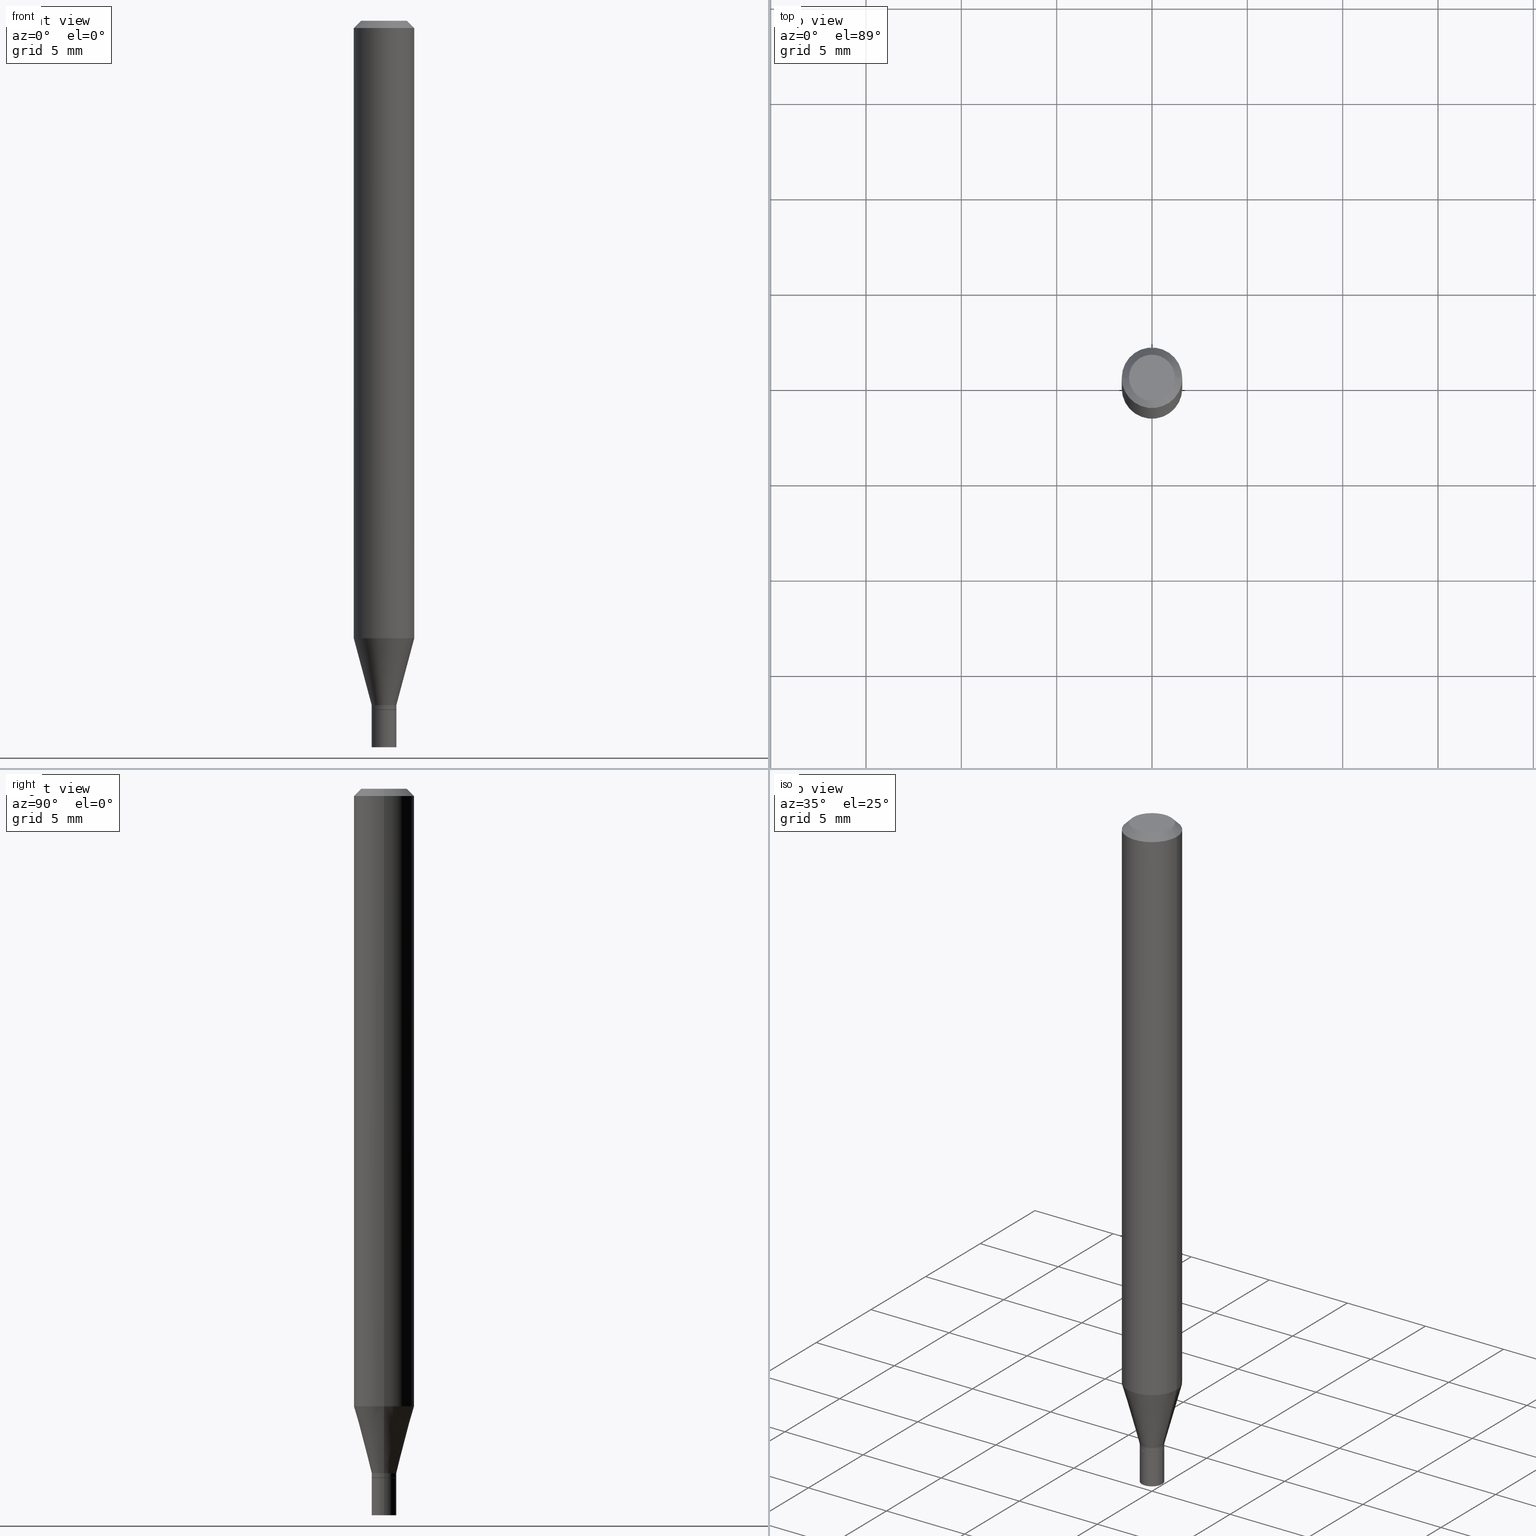
[diagram: canonical four-view strip — front | top / right | iso, engineering-drawing reading convention]
A machine part, canonical four-view strip (front | top / right | iso — engineering-drawing reading convention). The complete STEP part file that produces these views, byte-faithful:
ISO-10303-21;
HEADER;
FILE_DESCRIPTION (( 'STEP AP203' ),
    '1' );
FILE_NAME ('00347.STEP',
    '2024-03-19T21:01:22',
    ( '' ),
    ( '' ),
    'SwSTEP 2.0',
    'SolidWorks 2023',
    '' );
FILE_SCHEMA (( 'CONFIG_CONTROL_DESIGN' ));
ENDSEC;

DATA;
#1 = CARTESIAN_POINT ( 'NONE',  ( -0.02549999999999999836, -4.921611579100430777E-15, -1.423000000000000043 ) ) ;
#2 = ORIENTED_EDGE ( 'NONE', *, *, #185, .T. ) ;
#3 = CC_DESIGN_DATE_AND_TIME_ASSIGNMENT ( #393, #428, ( #161 ) ) ;
#4 = PLANE ( 'NONE',  #310 ) ;
#5 = EDGE_LOOP ( 'NONE', ( #138, #383, #222, #244 ) ) ;
#6 = CARTESIAN_POINT ( 'NONE',  ( 0.02549999999999992203, -5.111528680066364398E-15, -1.413000000000000256 ) ) ;
#7 = DIRECTION ( 'NONE',  ( -2.438088387897960049E-29, 3.491481338843145188E-15, 1.000000000000000000 ) ) ;
#8 = CONICAL_SURFACE ( 'NONE', #338, 0.02549999999999992203, 0.2617993877991499074 ) ;
#9 = EDGE_LOOP ( 'NONE', ( #291, #315 ) ) ;
#10 = DIRECTION ( 'NONE',  ( 0.2588190451025211836, 1.565188264969622559E-15, 0.9659258262890679791 ) ) ;
#11 = EDGE_CURVE ( 'NONE', #373, #19, #282, .T. ) ;
#12 = FACE_OUTER_BOUND ( 'NONE', #412, .T. ) ;
#13 = FACE_OUTER_BOUND ( 'NONE', #277, .T. ) ;
#14 = CARTESIAN_POINT ( 'NONE',  ( -0.02549999999999992203, 1.811883976188249934E-16, -1.254328448014996992E-30 ) ) ;
#15 = VERTEX_POINT ( 'NONE', #395 ) ;
#16 = ORIENTED_EDGE ( 'NONE', *, *, #460, .T. ) ;
#17 = VECTOR ( 'NONE', #213, 39.37007874015748854 ) ;
#18 = CARTESIAN_POINT ( 'NONE',  ( 3.479902111201449341E-29, -4.968377945173796372E-15, -1.423000000000000043 ) ) ;
#19 = VERTEX_POINT ( 'NONE', #144 ) ;
#20 = CARTESIAN_POINT ( 'NONE',  ( 0.000000000000000000, 0.000000000000000000, 0.000000000000000000 ) ) ;
#21 = CARTESIAN_POINT ( 'NONE',  ( 0.000000000000000000, 0.000000000000000000, 0.000000000000000000 ) ) ;
#22 = CARTESIAN_POINT ( 'NONE',  ( 0.06250000000000000000, -4.887774026381831286E-15, -1.274914120119951644 ) ) ;
#23 = ORIENTED_EDGE ( 'NONE', *, *, #460, .F. ) ;
#24 = APPROVAL_DATE_TIME ( #107, #459 ) ;
#25 = EDGE_CURVE ( 'NONE', #105, #269, #465, .T. ) ;
#26 = MANIFOLD_SOLID_BREP ( 'Body-Move/Copy2[2]', #29 ) ;
#27 = COORDINATED_UNIVERSAL_TIME_OFFSET ( 5, 0, .BEHIND. ) ;
#28 = EDGE_CURVE ( 'NONE', #211, #125, #66, .T. ) ;
#29 = CLOSED_SHELL ( 'NONE', ( #380, #333, #77, #229, #129, #42, #320, #103, #159, #208, #466, #122 ) ) ;
#30 = APPROVAL_STATUS ( 'not_yet_approved' ) ;
#31 = EDGE_LOOP ( 'NONE', ( #16, #143 ) ) ;
#32 = ORIENTED_EDGE ( 'NONE', *, *, #453, .F. ) ;
#33 = APPROVAL_ROLE ( '' ) ;
#34 = DIRECTION ( 'NONE',  ( -0.2588190451025211836, 5.211531920934547886E-15, 0.9659258262890679791 ) ) ;
#35 = CARTESIAN_POINT ( 'NONE',  ( 0.06250000000000000000, -4.811533449433679005E-16, -0.01499999999999999944 ) ) ;
#36 = VECTOR ( 'NONE', #312, 39.37007874015748143 ) ;
#37 = APPROVAL ( #63, 'UNSPECIFIED' ) ;
#38 = ORIENTED_EDGE ( 'NONE', *, *, #400, .F. ) ;
#39 = CARTESIAN_POINT ( 'NONE',  ( 3.316907271900976096E-16, 0.04749999999999999362, -4.396022119312973841E-16 ) ) ;
#40 = ORIENTED_EDGE ( 'NONE', *, *, #25, .T. ) ;
#41 = DIRECTION ( 'NONE',  ( -2.438088387897960049E-29, 3.491481338843145188E-15, 1.000000000000000000 ) ) ;
#42 = ADVANCED_FACE ( 'NONE', ( #12 ), #8, .T. ) ;
#43 = CARTESIAN_POINT ( 'NONE',  ( 0.02549999999999992203, -1.780655482809992805E-16, 1.243425077827959823E-30 ) ) ;
#44 = CIRCLE ( 'NONE', #288, 0.02549999999999992203 ) ;
#45 = FACE_OUTER_BOUND ( 'NONE', #271, .T. ) ;
#46 = VERTEX_POINT ( 'NONE', #6 ) ;
#47 = ORIENTED_EDGE ( 'NONE', *, *, #217, .F. ) ;
#48 = ORIENTED_EDGE ( 'NONE', *, *, #279, .T. ) ;
#49 = ORIENTED_EDGE ( 'NONE', *, *, #220, .F. ) ;
#50 = DIRECTION ( 'NONE',  ( -2.445468806185136597E-29, 3.491481338843145583E-15, 1.000000000000000000 ) ) ;
#51 = EDGE_CURVE ( 'NONE', #75, #386, #61, .T. ) ;
#52 = AXIS2_PLACEMENT_3D ( 'NONE', #339, #118, #81 ) ;
#53 = DIRECTION ( 'NONE',  ( 1.000000000000000000, -6.982962677686275388E-15, 0.000000000000000000 ) ) ;
#54 = CARTESIAN_POINT ( 'NONE',  ( 3.479902111201449341E-29, -4.968377945173796372E-15, -1.423000000000000043 ) ) ;
#55 = DIRECTION ( 'NONE',  ( -1.000000000000000000, 6.982962677686266711E-15, 0.000000000000000000 ) ) ;
#56 = DIRECTION ( 'NONE',  ( 1.000000000000000000, -6.982962677686255667E-15, 0.000000000000000000 ) ) ;
#57 = ORIENTED_EDGE ( 'NONE', *, *, #410, .T. ) ;
#58 = EDGE_CURVE ( 'NONE', #46, #105, #100, .T. ) ;
#59 = CARTESIAN_POINT ( 'NONE',  ( -0.06250000000000000000, 3.840629472727444916E-16, -0.01499999999999999944 ) ) ;
#60 = ORIENTED_EDGE ( 'NONE', *, *, #268, .T. ) ;
#61 = CIRCLE ( 'NONE', #52, 0.02549999999999992203 ) ;
#62 = AXIS2_PLACEMENT_3D ( 'NONE', #424, #248, #199 ) ;
#63 = APPROVAL_STATUS ( 'not_yet_approved' ) ;
#64 = EDGE_CURVE ( 'NONE', #125, #211, #175, .T. ) ;
#65 = PERSON_AND_ORGANIZATION_ROLE ( 'creator' ) ;
#66 = CIRCLE ( 'NONE', #376, 0.02549999999999999836 ) ;
#67 = APPROVAL_ROLE ( '' ) ;
#68 = PRODUCT_DEFINITION_FORMATION_WITH_SPECIFIED_SOURCE ( 'ANY', '', #308, .NOT_KNOWN. ) ;
#69 = CALENDAR_DATE ( 2024, 19, 3 ) ;
#70 = EDGE_CURVE ( 'NONE', #19, #373, #299, .T. ) ;
#71 = DIRECTION ( 'NONE',  ( 1.000000000000000000, -6.982962677686266711E-15, 0.000000000000000000 ) ) ;
#72 = ORIENTED_EDGE ( 'NONE', *, *, #243, .F. ) ;
#73 = AXIS2_PLACEMENT_3D ( 'NONE', #280, #96, #55 ) ;
#74 = PLANE ( 'NONE',  #362 ) ;
#75 = VERTEX_POINT ( 'NONE', #321 ) ;
#76 = DIRECTION ( 'NONE',  ( 1.000000000000000000, -6.982962677686266711E-15, 4.876176775795935793E-29 ) ) ;
#77 = ADVANCED_FACE ( 'NONE', ( #136 ), #120, .T. ) ;
#78 = DIRECTION ( 'NONE',  ( 1.000000000000000000, -6.982962677686266711E-15, 0.000000000000000000 ) ) ;
#79 = CARTESIAN_POINT ( 'NONE',  ( 1.780655482810345820E-16, 0.02549999999999503011, -1.423000000000000043 ) ) ;
#80 = ORIENTED_EDGE ( 'NONE', *, *, #28, .F. ) ;
#81 = DIRECTION ( 'NONE',  ( 1.000000000000000000, -6.982962677686258822E-15, 0.000000000000000000 ) ) ;
#82 = DIRECTION ( 'NONE',  ( -2.445468806185136877E-29, 3.491481338843145188E-15, 1.000000000000000000 ) ) ;
#83 = CONICAL_SURFACE ( 'NONE', #141, 0.02499999999999999792, 0.7853981633974739252 ) ;
#84 = FACE_OUTER_BOUND ( 'NONE', #108, .T. ) ;
#85 = EDGE_CURVE ( 'NONE', #19, #75, #245, .T. ) ;
#86 =( LENGTH_UNIT ( ) NAMED_UNIT ( * ) SI_UNIT ( $, .METRE. ) );
#87 = ORIENTED_EDGE ( 'NONE', *, *, #295, .T. ) ;
#88 = CARTESIAN_POINT ( 'NONE',  ( 1.338927666171699620E-44, -1.911633854693045944E-30, -5.475136966724958768E-16 ) ) ;
#89 = ADVANCED_FACE ( 'NONE', ( #155 ), #438, .F. ) ;
#90 = PERSON ( 'UNSPECIFIED', 'UNSPECIFIED', 'UNSPECIFIED', ('UNSPECIFIED'), ('UNSPECIFIED'), ('UNSPECIFIED') ) ;
#91 = LINE ( 'NONE', #357, #114 ) ;
#92 = VECTOR ( 'NONE', #370, 39.37007874015748854 ) ;
#93 = EDGE_LOOP ( 'NONE', ( #180, #23, #57, #60 ) ) ;
#94 = LOCAL_TIME ( 17, 1, 22.00000000000000000, #27 ) ;
#95 = AXIS2_PLACEMENT_3D ( 'NONE', #454, #216, #359 ) ;
#96 = DIRECTION ( 'NONE',  ( 2.445468806185136597E-29, -3.491481338843145583E-15, -1.000000000000000000 ) ) ;
#97 = FACE_OUTER_BOUND ( 'NONE', #5, .T. ) ;
#98 = CARTESIAN_POINT ( 'NONE',  ( 3.668203209277704895E-29, -5.237222008264718177E-15, -1.500000000000000222 ) ) ;
#99 = CARTESIAN_POINT ( 'NONE',  ( 0.02549999999999999836, -5.146443493454796047E-15, -1.423000000000000043 ) ) ;
#100 = CIRCLE ( 'NONE', #429, 0.02549999999999992203 ) ;
#101 = APPROVAL_PERSON_ORGANIZATION ( #142, #459, #67 ) ;
#102 = COORDINATED_UNIVERSAL_TIME_OFFSET ( 5, 0, .BEHIND. ) ;
#103 = ADVANCED_FACE ( 'NONE', ( #203 ), #182, .T. ) ;
#104 = APPROVAL_ROLE ( '' ) ;
#105 = VERTEX_POINT ( 'NONE', #126 ) ;
#106 = ORIENTED_EDGE ( 'NONE', *, *, #371, .T. ) ;
#107 = DATE_AND_TIME ( #174, #364 ) ;
#108 = EDGE_LOOP ( 'NONE', ( #38, #399, #313, #348 ) ) ;
#109 = AXIS2_PLACEMENT_3D ( 'NONE', #21, #119, #447 ) ;
#110 = CC_DESIGN_PERSON_AND_ORGANIZATION_ASSIGNMENT ( #177, #328, ( #68 ) ) ;
#111 = CARTESIAN_POINT ( 'NONE',  ( 3.668203209277705088E-31, -5.237222008264718399E-17, -0.01499999999999999944 ) ) ;
#112 = CARTESIAN_POINT ( 'NONE',  ( 0.06250000000000000000, -4.364351673553916694E-16, 3.047610484872459871E-30 ) ) ;
#113 = FACE_OUTER_BOUND ( 'NONE', #408, .T. ) ;
#114 = VECTOR ( 'NONE', #134, 39.37007874015748143 ) ;
#115 = LINE ( 'NONE', #35, #92 ) ;
#116 = CARTESIAN_POINT ( 'NONE',  ( 3.479902111201449341E-29, -4.968377945173796372E-15, -1.423000000000000043 ) ) ;
#117 = PLANE ( 'NONE',  #167 ) ;
#118 = DIRECTION ( 'NONE',  ( -2.445468806185136597E-29, 3.491481338843145583E-15, 1.000000000000000000 ) ) ;
#119 = DIRECTION ( 'NONE',  ( -2.445468806185136597E-29, 3.491481338843145583E-15, 1.000000000000000000 ) ) ;
#120 = CONICAL_SURFACE ( 'NONE', #73, 0.06250000000000000000, 0.7853981633974667087 ) ;
#121 = AXIS2_PLACEMENT_3D ( 'NONE', #274, #128, #163 ) ;
#122 = ADVANCED_FACE ( 'NONE', ( #84 ), #352, .T. ) ;
#123 = DIRECTION ( 'NONE',  ( -2.445468806185136877E-29, 3.491481338843145188E-15, 1.000000000000000000 ) ) ;
#124 = EDGE_LOOP ( 'NONE', ( #257, #2, #301, #80 ) ) ;
#125 = VERTEX_POINT ( 'NONE', #99 ) ;
#126 = CARTESIAN_POINT ( 'NONE',  ( -0.02549999999999992203, -4.379762191671458599E-15, -1.413000000000000256 ) ) ;
#127 = DIRECTION ( 'NONE',  ( -2.445468806185136597E-29, 3.491481338843145583E-15, 1.000000000000000000 ) ) ;
#128 = DIRECTION ( 'NONE',  ( -2.445468806185136597E-29, 3.491481338843145583E-15, 1.000000000000000000 ) ) ;
#129 = ADVANCED_FACE ( 'NONE', ( #283 ), #264, .T. ) ;
#130 = DIRECTION ( 'NONE',  ( -2.445468806185136597E-29, 3.491481338843145583E-15, 1.000000000000000000 ) ) ;
#131 = CC_DESIGN_PERSON_AND_ORGANIZATION_ASSIGNMENT ( #254, #292, ( #232 ) ) ;
#132 = CLOSED_SHELL ( 'NONE', ( #173, #262, #425, #89 ) ) ;
#133 = VECTOR ( 'NONE', #297, 39.37007874015748143 ) ;
#134 = DIRECTION ( 'NONE',  ( -0.7071067811865656694, 7.493145998870420424E-15, 0.7071067811865294761 ) ) ;
#135 = ORIENTED_EDGE ( 'NONE', *, *, #410, .F. ) ;
#136 = FACE_OUTER_BOUND ( 'NONE', #238, .T. ) ;
#137 = COORDINATED_UNIVERSAL_TIME_OFFSET ( 5, 0, .BEHIND. ) ;
#138 = ORIENTED_EDGE ( 'NONE', *, *, #361, .F. ) ;
#139 = COORDINATED_UNIVERSAL_TIME_OFFSET ( 5, 0, .BEHIND. ) ;
#140 = VECTOR ( 'NONE', #334, 39.37007874015748143 ) ;
#141 = AXIS2_PLACEMENT_3D ( 'NONE', #18, #246, #56 ) ;
#142 = PERSON_AND_ORGANIZATION ( #90, #252 ) ;
#143 = ORIENTED_EDGE ( 'NONE', *, *, #217, .T. ) ;
#144 = CARTESIAN_POINT ( 'NONE',  ( 0.02499999999999999792, -5.142952012115952251E-15, -1.423000000000000043 ) ) ;
#145 = APPROVAL ( #30, 'UNSPECIFIED' ) ;
#146 = AXIS2_PLACEMENT_3D ( 'NONE', #151, #266, #186 ) ;
#147 = ORIENTED_EDGE ( 'NONE', *, *, #64, .F. ) ;
#148 = LOCAL_TIME ( 17, 1, 22.00000000000000000, #137 ) ;
#149 = APPLICATION_CONTEXT ( 'configuration controlled 3d designs of mechanical parts and assemblies' ) ;
#150 = DIRECTION ( 'NONE',  ( -2.445468806185136597E-29, 3.491481338843145583E-15, 1.000000000000000000 ) ) ;
#151 = CARTESIAN_POINT ( 'NONE',  ( 3.668203209277704895E-29, -5.237222008264718177E-15, -1.500000000000000222 ) ) ;
#152 = EDGE_CURVE ( 'NONE', #384, #15, #115, .T. ) ;
#153 = CC_DESIGN_APPROVAL ( #145, ( #68 ) ) ;
#154 = CARTESIAN_POINT ( 'NONE',  ( -0.06250000000000000000, -4.007249649176377790E-15, -1.274914120119951644 ) ) ;
#155 = FACE_OUTER_BOUND ( 'NONE', #9, .T. ) ;
#156 = ORIENTED_EDGE ( 'NONE', *, *, #85, .F. ) ;
#157 = DIRECTION ( 'NONE',  ( -2.445468806185136597E-29, 3.491481338843145583E-15, 1.000000000000000000 ) ) ;
#158 = CARTESIAN_POINT ( 'NONE',  ( -0.02549999999999992203, -4.785443806885550343E-15, -1.422500000000000098 ) ) ;
#159 = ADVANCED_FACE ( 'NONE', ( #404 ), #74, .F. ) ;
#160 = DIRECTION ( 'NONE',  ( -2.445468806185136597E-29, 3.491481338843145583E-15, 1.000000000000000000 ) ) ;
#161 = SECURITY_CLASSIFICATION ( '', '', #258 ) ;
#162 = ORIENTED_EDGE ( 'NONE', *, *, #185, .F. ) ;
#163 = DIRECTION ( 'NONE',  ( 1.000000000000000000, -6.982962677686262766E-15, 0.000000000000000000 ) ) ;
#164 = DIRECTION ( 'NONE',  ( 1.000000000000000000, -6.982962677686258822E-15, 0.000000000000000000 ) ) ;
#165 = ORIENTED_EDGE ( 'NONE', *, *, #285, .F. ) ;
#166 = DIRECTION ( 'NONE',  ( -2.445468806185136597E-29, 3.491481338843145583E-15, 1.000000000000000000 ) ) ;
#167 = AXIS2_PLACEMENT_3D ( 'NONE', #378, #41, #411 ) ;
#168 = AXIS2_PLACEMENT_3D ( 'NONE', #88, #130, #281 ) ;
#169 = DIRECTION ( 'NONE',  ( 1.000000000000000000, -6.982962677686255667E-15, 0.000000000000000000 ) ) ;
#170 = DIRECTION ( 'NONE',  ( 2.445468806185136597E-29, -3.491481338843145583E-15, -1.000000000000000000 ) ) ;
#171 = APPROVAL_DATE_TIME ( #365, #37 ) ;
#172 = APPLICATION_PROTOCOL_DEFINITION ( 'international standard', 'config_control_design', 1994, #356 ) ;
#173 = ADVANCED_FACE ( 'NONE', ( #409 ), #303, .T. ) ;
#174 = CALENDAR_DATE ( 2024, 19, 3 ) ;
#175 = CIRCLE ( 'NONE', #298, 0.02549999999999999836 ) ;
#176 = CIRCLE ( 'NONE', #456, 0.06250000000000000000 ) ;
#177 = PERSON_AND_ORGANIZATION ( #90, #252 ) ;
#178 = VERTEX_POINT ( 'NONE', #337 ) ;
#179 = APPROVAL_DATE_TIME ( #287, #145 ) ;
#180 = ORIENTED_EDGE ( 'NONE', *, *, #152, .F. ) ;
#181 = CARTESIAN_POINT ( 'NONE',  ( 3.479902111201449341E-29, -4.968377945173796372E-15, -1.423000000000000043 ) ) ;
#182 = CONICAL_SURFACE ( 'NONE', #206, 0.06250000000000000000, 0.7853981633974667087 ) ;
#183 = AXIS2_PLACEMENT_3D ( 'NONE', #193, #267, #225 ) ;
#184 = LINE ( 'NONE', #112, #133 ) ;
#185 = EDGE_CURVE ( 'NONE', #441, #178, #319, .T. ) ;
#186 = DIRECTION ( 'NONE',  ( 1.000000000000000000, -6.982962677686275388E-15, 0.000000000000000000 ) ) ;
#187 = CC_DESIGN_PERSON_AND_ORGANIZATION_ASSIGNMENT ( #401, #452, ( #161 ) ) ;
#188 = DIRECTION ( 'NONE',  ( -2.445468806185136597E-29, 3.491481338843145583E-15, 1.000000000000000000 ) ) ;
#189 = ORIENTED_EDGE ( 'NONE', *, *, #400, .T. ) ;
#190 = LINE ( 'NONE', #43, #140 ) ;
#191 = AXIS2_PLACEMENT_3D ( 'NONE', #440, #231, #374 ) ;
#192 = CIRCLE ( 'NONE', #340, 0.06250000000000000000 ) ;
#193 = CARTESIAN_POINT ( 'NONE',  ( 3.455447423139598357E-29, -4.933463131785365512E-15, -1.413000000000000256 ) ) ;
#194 = DIRECTION ( 'NONE',  ( 2.438088387897960049E-29, -3.491481338843145188E-15, -1.000000000000000000 ) ) ;
#195 = ORIENTED_EDGE ( 'NONE', *, *, #70, .T. ) ;
#196 = ADVANCED_BREP_SHAPE_REPRESENTATION ( '00347', ( #204, #26, #95 ), #350 ) ;
#197 = CARTESIAN_POINT ( 'NONE',  ( 3.455447423139598357E-29, -4.933463131785365512E-15, -1.413000000000000256 ) ) ;
#198 = CARTESIAN_POINT ( 'NONE',  ( -0.06250000000000000000, 4.440892098500626162E-16, -3.074334431409316114E-30 ) ) ;
#199 = DIRECTION ( 'NONE',  ( 1.000000000000000000, -6.982962677686267499E-15, 4.876176775795935793E-29 ) ) ;
#200 = ORIENTED_EDGE ( 'NONE', *, *, #152, .T. ) ;
#201 = ORIENTED_EDGE ( 'NONE', *, *, #442, .F. ) ;
#202 = DESIGN_CONTEXT ( 'detailed design', #356, 'design' ) ;
#203 = FACE_OUTER_BOUND ( 'NONE', #93, .T. ) ;
#204 = MANIFOLD_SOLID_BREP ( 'Body-Move/Copy2[1]', #132 ) ;
#205 = LINE ( 'NONE', #351, #36 ) ;
#206 = AXIS2_PLACEMENT_3D ( 'NONE', #423, #170, #417 ) ;
#207 = CC_DESIGN_APPROVAL ( #459, ( #232 ) ) ;
#208 = ADVANCED_FACE ( 'NONE', ( #13 ), #117, .F. ) ;
#209 = CYLINDRICAL_SURFACE ( 'NONE', #62, 0.02549999999999992203 ) ;
#210 = CARTESIAN_POINT ( 'NONE',  ( -0.02549999999999999836, -4.921611579100430777E-15, -1.500000000000000222 ) ) ;
#211 = VERTEX_POINT ( 'NONE', #1 ) ;
#212 = CARTESIAN_POINT ( 'NONE',  ( 3.479902111201449341E-29, -4.968377945173796372E-15, -1.423000000000000043 ) ) ;
#213 = DIRECTION ( 'NONE',  ( -0.7071067811865604513, 2.468850131082393139E-15, -0.7071067811865343611 ) ) ;
#214 = VECTOR ( 'NONE', #304, 39.37007874015748143 ) ;
#215 = AXIS2_PLACEMENT_3D ( 'NONE', #111, #157, #71 ) ;
#216 = DIRECTION ( 'NONE',  ( 0.000000000000000000, 0.000000000000000000, 1.000000000000000000 ) ) ;
#217 = EDGE_CURVE ( 'NONE', #384, #431, #445, .T. ) ;
#218 =( NAMED_UNIT ( * ) SI_UNIT ( $, .STERADIAN. ) SOLID_ANGLE_UNIT ( ) );
#219 = ORIENTED_EDGE ( 'NONE', *, *, #243, .T. ) ;
#220 = EDGE_CURVE ( 'NONE', #178, #125, #414, .T. ) ;
#221 =( NAMED_UNIT ( * ) PLANE_ANGLE_UNIT ( ) SI_UNIT ( $, .RADIAN. ) );
#222 = ORIENTED_EDGE ( 'NONE', *, *, #85, .T. ) ;
#223 = EDGE_LOOP ( 'NONE', ( #255, #162 ) ) ;
#224 = CALENDAR_DATE ( 2024, 19, 3 ) ;
#225 = DIRECTION ( 'NONE',  ( 1.000000000000000000, -6.982962677686258822E-15, 0.000000000000000000 ) ) ;
#226 = AXIS2_PLACEMENT_3D ( 'NONE', #403, #296, #332 ) ;
#227 = VECTOR ( 'NONE', #10, 39.37007874015748854 ) ;
#228 = DIRECTION ( 'NONE',  ( -1.000000000000000000, 6.982962677686265922E-15, -4.876176775795935793E-29 ) ) ;
#229 = ADVANCED_FACE ( 'NONE', ( #45 ), #270, .T. ) ;
#230 = DIRECTION ( 'NONE',  ( 2.438088387897960049E-29, -3.491481338843145188E-15, -1.000000000000000000 ) ) ;
#231 = DIRECTION ( 'NONE',  ( -2.445468806185136597E-29, 3.491481338843145583E-15, 1.000000000000000000 ) ) ;
#232 = PRODUCT_DEFINITION ( 'UNKNOWN', '', #68, #202 ) ;
#233 = APPROVAL_PERSON_ORGANIZATION ( #457, #37, #104 ) ;
#234 = LINE ( 'NONE', #198, #349 ) ;
#235 = CARTESIAN_POINT ( 'NONE',  ( 3.479902111201449341E-29, -4.968377945173796372E-15, -1.423000000000000043 ) ) ;
#236 =( CONVERSION_BASED_UNIT ( 'INCH', #382 ) LENGTH_UNIT ( ) NAMED_UNIT ( #375 ) );
#237 = ORIENTED_EDGE ( 'NONE', *, *, #51, .T. ) ;
#238 = EDGE_LOOP ( 'NONE', ( #47, #200, #87, #135 ) ) ;
#239 = CARTESIAN_POINT ( 'NONE',  ( -0.06250000000000000000, -1.807766329704480929E-15, -0.01499999999999999944 ) ) ;
#240 = ORIENTED_EDGE ( 'NONE', *, *, #442, .T. ) ;
#241 = CARTESIAN_POINT ( 'NONE',  ( -0.02499999999999999792, -4.788093034059660756E-15, -1.423000000000000043 ) ) ;
#242 = ORIENTED_EDGE ( 'NONE', *, *, #51, .F. ) ;
#243 = EDGE_CURVE ( 'NONE', #269, #439, #234, .T. ) ;
#244 = ORIENTED_EDGE ( 'NONE', *, *, #420, .F. ) ;
#245 = LINE ( 'NONE', #387, #214 ) ;
#246 = DIRECTION ( 'NONE',  ( -2.445468806185136597E-29, 3.491481338843145583E-15, 1.000000000000000000 ) ) ;
#247 = ORIENTED_EDGE ( 'NONE', *, *, #268, .F. ) ;
#248 = DIRECTION ( 'NONE',  ( -2.445468806185136597E-29, 3.491481338843145583E-15, 1.000000000000000000 ) ) ;
#249 = ORIENTED_EDGE ( 'NONE', *, *, #250, .F. ) ;
#250 = EDGE_CURVE ( 'NONE', #75, #46, #190, .T. ) ;
#251 = VECTOR ( 'NONE', #345, 39.37007874015748143 ) ;
#252 = ORGANIZATION ( 'UNSPECIFIED', 'UNSPECIFIED', '' ) ;
#253 = PERSON_AND_ORGANIZATION ( #90, #252 ) ;
#254 = PERSON_AND_ORGANIZATION ( #90, #252 ) ;
#255 = ORIENTED_EDGE ( 'NONE', *, *, #371, .F. ) ;
#256 = PERSON_AND_ORGANIZATION ( #90, #252 ) ;
#257 = ORIENTED_EDGE ( 'NONE', *, *, #434, .F. ) ;
#258 = SECURITY_CLASSIFICATION_LEVEL ( 'unclassified' ) ;
#259 = ORIENTED_EDGE ( 'NONE', *, *, #25, .F. ) ;
#260 = ORIENTED_EDGE ( 'NONE', *, *, #453, .T. ) ;
#261 = CARTESIAN_POINT ( 'NONE',  ( 0.02549999999999999836, -1.780655482809997982E-16, 1.243425077827963501E-30 ) ) ;
#262 = ADVANCED_FACE ( 'NONE', ( #341 ), #4, .F. ) ;
#263 = DIRECTION ( 'NONE',  ( 1.000000000000000000, -6.982962677686258822E-15, 0.000000000000000000 ) ) ;
#264 = CONICAL_SURFACE ( 'NONE', #325, 0.02549999999999992203, 0.2617993877991499074 ) ;
#265 = AXIS2_PLACEMENT_3D ( 'NONE', #98, #50, #284 ) ;
#266 = DIRECTION ( 'NONE',  ( -2.445468806185136597E-29, 3.491481338843145583E-15, 1.000000000000000000 ) ) ;
#267 = DIRECTION ( 'NONE',  ( -2.445468806185136597E-29, 3.491481338843145583E-15, 1.000000000000000000 ) ) ;
#268 = EDGE_CURVE ( 'NONE', #439, #15, #192, .T. ) ;
#269 = VERTEX_POINT ( 'NONE', #154 ) ;
#270 = CYLINDRICAL_SURFACE ( 'NONE', #368, 0.06250000000000000000 ) ;
#271 = EDGE_LOOP ( 'NONE', ( #240, #219, #402, #381 ) ) ;
#272 = DIRECTION ( 'NONE',  ( 1.000000000000000000, -6.982962677686262766E-15, 0.000000000000000000 ) ) ;
#273 = DIRECTION ( 'NONE',  ( -2.445468806185136597E-29, 3.491481338843145583E-15, 1.000000000000000000 ) ) ;
#274 = CARTESIAN_POINT ( 'NONE',  ( 3.117762711318311949E-29, -4.451338859026439617E-15, -1.274914120119951644 ) ) ;
#275 = EDGE_CURVE ( 'NONE', #105, #46, #377, .T. ) ;
#276 = ORIENTED_EDGE ( 'NONE', *, *, #58, .T. ) ;
#277 = EDGE_LOOP ( 'NONE', ( #415, #293 ) ) ;
#278 = CARTESIAN_POINT ( 'NONE',  ( 0.000000000000000000, 0.000000000000000000, 0.000000000000000000 ) ) ;
#279 = EDGE_CURVE ( 'NONE', #444, #15, #184, .T. ) ;
#280 = CARTESIAN_POINT ( 'NONE',  ( 3.668203209277705088E-31, -5.237222008264718399E-17, -0.01499999999999999944 ) ) ;
#281 = DIRECTION ( 'NONE',  ( 1.000000000000000000, -6.982962677686267499E-15, 4.852736867747366768E-29 ) ) ;
#282 = CIRCLE ( 'NONE', #405, 0.02499999999999999792 ) ;
#283 = FACE_OUTER_BOUND ( 'NONE', #461, .T. ) ;
#284 = DIRECTION ( 'NONE',  ( 1.000000000000000000, -6.982962677686275388E-15, 0.000000000000000000 ) ) ;
#285 = EDGE_CURVE ( 'NONE', #46, #444, #435, .T. ) ;
#286 = PERSON_AND_ORGANIZATION ( #90, #252 ) ;
#287 = DATE_AND_TIME ( #224, #369 ) ;
#288 = AXIS2_PLACEMENT_3D ( 'NONE', #388, #160, #164 ) ;
#289 = APPLICATION_PROTOCOL_DEFINITION ( 'international standard', 'config_control_design', 1994, #149 ) ;
#290 = PERSON_AND_ORGANIZATION_ROLE ( 'design_owner' ) ;
#291 = ORIENTED_EDGE ( 'NONE', *, *, #64, .T. ) ;
#292 = PERSON_AND_ORGANIZATION_ROLE ( 'creator' ) ;
#293 = ORIENTED_EDGE ( 'NONE', *, *, #11, .F. ) ;
#294 = CARTESIAN_POINT ( 'NONE',  ( 3.668203209277705088E-31, -5.237222008264718399E-17, -0.01499999999999999944 ) ) ;
#295 = EDGE_CURVE ( 'NONE', #15, #439, #326, .T. ) ;
#296 = DIRECTION ( 'NONE',  ( -2.445468806185136597E-29, 3.491481338843145583E-15, 1.000000000000000000 ) ) ;
#297 = DIRECTION ( 'NONE',  ( -2.445468806185136877E-29, 3.491481338843145188E-15, 1.000000000000000000 ) ) ;
#298 = AXIS2_PLACEMENT_3D ( 'NONE', #235, #273, #53 ) ;
#299 = CIRCLE ( 'NONE', #391, 0.02499999999999999792 ) ;
#300 = CARTESIAN_POINT ( 'NONE',  ( 3.576687321579069994E-29, -5.368277968210015545E-15, -1.500000000000000222 ) ) ;
#301 = ORIENTED_EDGE ( 'NONE', *, *, #220, .T. ) ;
#302 = PRODUCT_DEFINITION_SHAPE ( 'NONE', 'NONE',  #232 ) ;
#303 = CYLINDRICAL_SURFACE ( 'NONE', #191, 0.02549999999999999836 ) ;
#304 = DIRECTION ( 'NONE',  ( 0.7071067811865656694, -2.468850131082446387E-15, 0.7071067811865294761 ) ) ;
#305 = ORIENTED_EDGE ( 'NONE', *, *, #275, .T. ) ;
#306 = DIRECTION ( 'NONE',  ( 1.000000000000000000, -6.982962677686266711E-15, 4.876176775795935793E-29 ) ) ;
#307 = EDGE_LOOP ( 'NONE', ( #237, #189, #360, #249 ) ) ;
#308 = PRODUCT ( '00347', '00347', '', ( #462 ) ) ;
#309 = EDGE_LOOP ( 'NONE', ( #195, #390, #242, #156 ) ) ;
#310 = AXIS2_PLACEMENT_3D ( 'NONE', #300, #7, #433 ) ;
#311 = AXIS2_PLACEMENT_3D ( 'NONE', #278, #419, #306 ) ;
#312 = DIRECTION ( 'NONE',  ( -2.445468806185136877E-29, 3.491481338843145188E-15, 1.000000000000000000 ) ) ;
#313 = ORIENTED_EDGE ( 'NONE', *, *, #250, .T. ) ;
#314 = LINE ( 'NONE', #14, #331 ) ;
#315 = ORIENTED_EDGE ( 'NONE', *, *, #28, .T. ) ;
#316 = DIRECTION ( 'NONE',  ( -2.445468806185136597E-29, 3.491481338843145583E-15, 1.000000000000000000 ) ) ;
#317 = ORIENTED_EDGE ( 'NONE', *, *, #434, .T. ) ;
#318 = FACE_OUTER_BOUND ( 'NONE', #309, .T. ) ;
#319 = CIRCLE ( 'NONE', #146, 0.02549999999999999836 ) ;
#320 = ADVANCED_FACE ( 'NONE', ( #113 ), #372, .T. ) ;
#321 = CARTESIAN_POINT ( 'NONE',  ( 0.02549999999999992203, -5.144697752785373754E-15, -1.422500000000000098 ) ) ;
#322 = SHAPE_DEFINITION_REPRESENTATION ( #302, #196 ) ;
#323 = DATE_AND_TIME ( #324, #94 ) ;
#324 = CALENDAR_DATE ( 2024, 19, 3 ) ;
#325 = AXIS2_PLACEMENT_3D ( 'NONE', #422, #166, #263 ) ;
#326 = CIRCLE ( 'NONE', #215, 0.06250000000000000000 ) ;
#327 = CC_DESIGN_DATE_AND_TIME_ASSIGNMENT ( #323, #394, ( #232 ) ) ;
#328 = PERSON_AND_ORGANIZATION_ROLE ( 'design_supplier' ) ;
#329 = COORDINATED_UNIVERSAL_TIME_OFFSET ( 5, 0, .BEHIND. ) ;
#330 = AXIS2_PLACEMENT_3D ( 'NONE', #20, #127, #448 ) ;
#331 = VECTOR ( 'NONE', #123, 39.37007874015748143 ) ;
#332 = DIRECTION ( 'NONE',  ( 1.000000000000000000, -6.982962677686267499E-15, 4.852736867747366768E-29 ) ) ;
#333 = ADVANCED_FACE ( 'NONE', ( #318 ), #430, .T. ) ;
#334 = DIRECTION ( 'NONE',  ( -2.445468806185136877E-29, 3.491481338843145188E-15, 1.000000000000000000 ) ) ;
#335 = DIRECTION ( 'NONE',  ( 1.000000000000000000, -6.982962677686258822E-15, 0.000000000000000000 ) ) ;
#336 = CC_DESIGN_PERSON_AND_ORGANIZATION_ASSIGNMENT ( #286, #290, ( #308 ) ) ;
#337 = CARTESIAN_POINT ( 'NONE',  ( 0.02549999999999999836, -5.415287556545718640E-15, -1.500000000000000222 ) ) ;
#338 = AXIS2_PLACEMENT_3D ( 'NONE', #413, #188, #335 ) ;
#339 = CARTESIAN_POINT ( 'NONE',  ( 3.478679376798357100E-29, -4.966632204504374868E-15, -1.422500000000000098 ) ) ;
#340 = AXIS2_PLACEMENT_3D ( 'NONE', #294, #432, #78 ) ;
#341 = FACE_OUTER_BOUND ( 'NONE', #223, .T. ) ;
#342 = DIRECTION ( 'NONE',  ( -1.000000000000000000, 6.982962677686265922E-15, -4.876176775795935793E-29 ) ) ;
#343 = DIRECTION ( 'NONE',  ( -2.445468806185136597E-29, 3.491481338843145583E-15, 1.000000000000000000 ) ) ;
#344 = DIRECTION ( 'NONE',  ( -2.445468806185136597E-29, 3.491481338843145583E-15, 1.000000000000000000 ) ) ;
#345 = DIRECTION ( 'NONE',  ( -2.445468806185136877E-29, 3.491481338843145188E-15, 1.000000000000000000 ) ) ;
#346 = DIRECTION ( 'NONE',  ( -2.445468806185136597E-29, 3.491481338843145583E-15, 1.000000000000000000 ) ) ;
#347 = PRODUCT_RELATED_PRODUCT_CATEGORY ( 'detail', '', ( #308 ) ) ;
#348 = ORIENTED_EDGE ( 'NONE', *, *, #275, .F. ) ;
#349 = VECTOR ( 'NONE', #82, 39.37007874015748143 ) ;
#350 =( GEOMETRIC_REPRESENTATION_CONTEXT ( 3 ) GLOBAL_UNCERTAINTY_ASSIGNED_CONTEXT ( ( #451 ) ) GLOBAL_UNIT_ASSIGNED_CONTEXT ( ( #236, #221, #218 ) ) REPRESENTATION_CONTEXT ( 'NONE', 'WORKASPACE' ) );
#351 = CARTESIAN_POINT ( 'NONE',  ( -0.02549999999999999836, 1.811883976188255358E-16, -1.254328448015001021E-30 ) ) ;
#352 = CYLINDRICAL_SURFACE ( 'NONE', #330, 0.02549999999999992203 ) ;
#353 = CYLINDRICAL_SURFACE ( 'NONE', #109, 0.02549999999999999836 ) ;
#354 = CC_DESIGN_PERSON_AND_ORGANIZATION_ASSIGNMENT ( #253, #65, ( #68 ) ) ;
#355 = DIRECTION ( 'NONE',  ( -2.445468806185136597E-29, 3.491481338843145583E-15, 1.000000000000000000 ) ) ;
#356 = APPLICATION_CONTEXT ( 'configuration controlled 3d designs of mechanical parts and assemblies' ) ;
#357 = CARTESIAN_POINT ( 'NONE',  ( -0.02499999999999999792, -4.790742261233771168E-15, -1.423000000000000043 ) ) ;
#358 = APPROVAL_STATUS ( 'not_yet_approved' ) ;
#359 = DIRECTION ( 'NONE',  ( 1.000000000000000000, 0.000000000000000000, 0.000000000000000000 ) ) ;
#360 = ORIENTED_EDGE ( 'NONE', *, *, #58, .F. ) ;
#361 = EDGE_CURVE ( 'NONE', #373, #386, #91, .T. ) ;
#362 = AXIS2_PLACEMENT_3D ( 'NONE', #39, #230, #228 ) ;
#363 = APPROVAL_PERSON_ORGANIZATION ( #256, #145, #33 ) ;
#364 = LOCAL_TIME ( 17, 1, 22.00000000000000000, #102 ) ;
#365 = DATE_AND_TIME ( #396, #148 ) ;
#366 = CARTESIAN_POINT ( 'NONE',  ( -0.02549999999999992203, -4.752274734166540987E-15, -1.413000000000000256 ) ) ;
#367 = CARTESIAN_POINT ( 'NONE',  ( 0.000000000000000000, 0.000000000000000000, 0.000000000000000000 ) ) ;
#368 = AXIS2_PLACEMENT_3D ( 'NONE', #367, #150, #76 ) ;
#369 = LOCAL_TIME ( 17, 1, 22.00000000000000000, #139 ) ;
#370 = DIRECTION ( 'NONE',  ( 0.7071067811865604513, -7.319954787623298644E-15, -0.7071067811865343611 ) ) ;
#371 = EDGE_CURVE ( 'NONE', #178, #441, #398, .T. ) ;
#372 = CYLINDRICAL_SURFACE ( 'NONE', #311, 0.06250000000000000000 ) ;
#373 = VERTEX_POINT ( 'NONE', #241 ) ;
#374 = DIRECTION ( 'NONE',  ( 1.000000000000000000, -6.982962677686266711E-15, 4.876176775795935793E-29 ) ) ;
#375 = DIMENSIONAL_EXPONENTS ( 1.000000000000000000, 0.000000000000000000, 0.000000000000000000, 0.000000000000000000, 0.000000000000000000, 0.000000000000000000, 0.000000000000000000 ) ;
#376 = AXIS2_PLACEMENT_3D ( 'NONE', #181, #463, #406 ) ;
#377 = CIRCLE ( 'NONE', #183, 0.02549999999999992203 ) ;
#378 = CARTESIAN_POINT ( 'NONE',  ( 3.479902111201449341E-29, -4.968377945173796372E-15, -1.423000000000000043 ) ) ;
#379 = CARTESIAN_POINT ( 'NONE',  ( 0.04749999999999999362, -4.035134999187587991E-16, -5.475136966724933130E-16 ) ) ;
#380 = ADVANCED_FACE ( 'NONE', ( #385 ), #209, .T. ) ;
#381 = ORIENTED_EDGE ( 'NONE', *, *, #279, .F. ) ;
#382 = LENGTH_MEASURE_WITH_UNIT ( LENGTH_MEASURE( 0.02539999999999999897 ), #86 );
#383 = ORIENTED_EDGE ( 'NONE', *, *, #11, .T. ) ;
#384 = VERTEX_POINT ( 'NONE', #379 ) ;
#385 = FACE_OUTER_BOUND ( 'NONE', #307, .T. ) ;
#386 = VERTEX_POINT ( 'NONE', #158 ) ;
#387 = CARTESIAN_POINT ( 'NONE',  ( 0.02499999999999999792, -5.142952012115952251E-15, -1.423000000000000043 ) ) ;
#388 = CARTESIAN_POINT ( 'NONE',  ( 3.478679376798357100E-29, -4.966632204504374868E-15, -1.422500000000000098 ) ) ;
#389 = LINE ( 'NONE', #59, #17 ) ;
#390 = ORIENTED_EDGE ( 'NONE', *, *, #361, .T. ) ;
#391 = AXIS2_PLACEMENT_3D ( 'NONE', #212, #355, #169 ) ;
#392 = CIRCLE ( 'NONE', #168, 0.04749999999999999362 ) ;
#393 = DATE_AND_TIME ( #69, #450 ) ;
#394 = DATE_TIME_ROLE ( 'creation_date' ) ;
#395 = CARTESIAN_POINT ( 'NONE',  ( 0.06250000000000000000, -4.888073874380388472E-16, -0.01499999999999999944 ) ) ;
#396 = CALENDAR_DATE ( 2024, 19, 3 ) ;
#397 = AXIS2_PLACEMENT_3D ( 'NONE', #79, #194, #342 ) ;
#398 = CIRCLE ( 'NONE', #265, 0.02549999999999999836 ) ;
#399 = ORIENTED_EDGE ( 'NONE', *, *, #420, .T. ) ;
#400 = EDGE_CURVE ( 'NONE', #386, #105, #314, .T. ) ;
#401 = PERSON_AND_ORGANIZATION ( #90, #252 ) ;
#402 = ORIENTED_EDGE ( 'NONE', *, *, #295, .F. ) ;
#403 = CARTESIAN_POINT ( 'NONE',  ( 1.338927666171699620E-44, -1.911633854693045944E-30, -5.475136966724958768E-16 ) ) ;
#404 = FACE_OUTER_BOUND ( 'NONE', #31, .T. ) ;
#405 = AXIS2_PLACEMENT_3D ( 'NONE', #116, #343, #427 ) ;
#406 = DIRECTION ( 'NONE',  ( 1.000000000000000000, -6.982962677686275388E-15, 0.000000000000000000 ) ) ;
#407 = CC_DESIGN_SECURITY_CLASSIFICATION ( #161, ( #68 ) ) ;
#408 = EDGE_LOOP ( 'NONE', ( #72, #260, #48, #247 ) ) ;
#409 = FACE_OUTER_BOUND ( 'NONE', #458, .T. ) ;
#410 = EDGE_CURVE ( 'NONE', #431, #439, #389, .T. ) ;
#411 = DIRECTION ( 'NONE',  ( 1.000000000000000000, -6.982962677686265922E-15, 4.876176775795935793E-29 ) ) ;
#412 = EDGE_LOOP ( 'NONE', ( #259, #305, #418, #32 ) ) ;
#413 = CARTESIAN_POINT ( 'NONE',  ( 3.455447423139598357E-29, -4.933463131785365512E-15, -1.413000000000000256 ) ) ;
#414 = LINE ( 'NONE', #261, #251 ) ;
#415 = ORIENTED_EDGE ( 'NONE', *, *, #70, .F. ) ;
#416 = DIRECTION ( 'NONE',  ( 1.000000000000000000, -6.982962677686258822E-15, 0.000000000000000000 ) ) ;
#417 = DIRECTION ( 'NONE',  ( -1.000000000000000000, 6.982962677686266711E-15, 0.000000000000000000 ) ) ;
#418 = ORIENTED_EDGE ( 'NONE', *, *, #285, .T. ) ;
#419 = DIRECTION ( 'NONE',  ( -2.445468806185136597E-29, 3.491481338843145583E-15, 1.000000000000000000 ) ) ;
#420 = EDGE_CURVE ( 'NONE', #386, #75, #44, .T. ) ;
#421 = DIRECTION ( 'NONE',  ( 1.000000000000000000, -6.982962677686255667E-15, 0.000000000000000000 ) ) ;
#422 = CARTESIAN_POINT ( 'NONE',  ( 3.455447423139598357E-29, -4.933463131785365512E-15, -1.413000000000000256 ) ) ;
#423 = CARTESIAN_POINT ( 'NONE',  ( 3.668203209277705088E-31, -5.237222008264718399E-17, -0.01499999999999999944 ) ) ;
#424 = CARTESIAN_POINT ( 'NONE',  ( 0.000000000000000000, 0.000000000000000000, 0.000000000000000000 ) ) ;
#425 = ADVANCED_FACE ( 'NONE', ( #443 ), #353, .T. ) ;
#426 = CC_DESIGN_APPROVAL ( #37, ( #161 ) ) ;
#427 = DIRECTION ( 'NONE',  ( 1.000000000000000000, -6.982962677686255667E-15, 0.000000000000000000 ) ) ;
#428 = DATE_TIME_ROLE ( 'classification_date' ) ;
#429 = AXIS2_PLACEMENT_3D ( 'NONE', #197, #344, #416 ) ;
#430 = CONICAL_SURFACE ( 'NONE', #464, 0.02499999999999999792, 0.7853981633974739252 ) ;
#431 = VERTEX_POINT ( 'NONE', #449 ) ;
#432 = DIRECTION ( 'NONE',  ( -2.445468806185136597E-29, 3.491481338843145583E-15, 1.000000000000000000 ) ) ;
#433 = DIRECTION ( 'NONE',  ( 1.000000000000000000, -6.982962677686265922E-15, 4.876176775795935793E-29 ) ) ;
#434 = EDGE_CURVE ( 'NONE', #441, #211, #205, .T. ) ;
#435 = LINE ( 'NONE', #437, #227 ) ;
#436 = CIRCLE ( 'NONE', #121, 0.06250000000000000000 ) ;
#437 = CARTESIAN_POINT ( 'NONE',  ( 0.02549999999999992203, -5.111528680066364398E-15, -1.413000000000000256 ) ) ;
#438 = PLANE ( 'NONE',  #397 ) ;
#439 = VERTEX_POINT ( 'NONE', #239 ) ;
#440 = CARTESIAN_POINT ( 'NONE',  ( 0.000000000000000000, 0.000000000000000000, 0.000000000000000000 ) ) ;
#441 = VERTEX_POINT ( 'NONE', #210 ) ;
#442 = EDGE_CURVE ( 'NONE', #444, #269, #176, .T. ) ;
#443 = FACE_OUTER_BOUND ( 'NONE', #124, .T. ) ;
#444 = VERTEX_POINT ( 'NONE', #22 ) ;
#445 = CIRCLE ( 'NONE', #226, 0.04749999999999999362 ) ;
#446 = CARTESIAN_POINT ( 'NONE',  ( 3.117762711318311949E-29, -4.451338859026439617E-15, -1.274914120119951644 ) ) ;
#447 = DIRECTION ( 'NONE',  ( 1.000000000000000000, -6.982962677686266711E-15, 4.876176775795935793E-29 ) ) ;
#448 = DIRECTION ( 'NONE',  ( 1.000000000000000000, -6.982962677686267499E-15, 4.876176775795935793E-29 ) ) ;
#449 = CARTESIAN_POINT ( 'NONE',  ( -0.04749999999999999362, 3.578768372314200645E-16, -5.475136966724983420E-16 ) ) ;
#450 = LOCAL_TIME ( 17, 1, 22.00000000000000000, #329 ) ;
#451 = UNCERTAINTY_MEASURE_WITH_UNIT (LENGTH_MEASURE( 1.000000000000000082E-05 ), #236, 'distance_accuracy_value', 'NONE');
#452 = PERSON_AND_ORGANIZATION_ROLE ( 'classification_officer' ) ;
#453 = EDGE_CURVE ( 'NONE', #269, #444, #436, .T. ) ;
#454 = CARTESIAN_POINT ( 'NONE',  ( 0.000000000000000000, 0.000000000000000000, 0.000000000000000000 ) ) ;
#455 = VECTOR ( 'NONE', #34, 39.37007874015748854 ) ;
#456 = AXIS2_PLACEMENT_3D ( 'NONE', #446, #316, #272 ) ;
#457 = PERSON_AND_ORGANIZATION ( #90, #252 ) ;
#458 = EDGE_LOOP ( 'NONE', ( #106, #317, #147, #49 ) ) ;
#459 = APPROVAL ( #358, 'UNSPECIFIED' ) ;
#460 = EDGE_CURVE ( 'NONE', #431, #384, #392, .T. ) ;
#461 = EDGE_LOOP ( 'NONE', ( #276, #40, #201, #165 ) ) ;
#462 = MECHANICAL_CONTEXT ( 'NONE', #149, 'mechanical' ) ;
#463 = DIRECTION ( 'NONE',  ( -2.445468806185136597E-29, 3.491481338843145583E-15, 1.000000000000000000 ) ) ;
#464 = AXIS2_PLACEMENT_3D ( 'NONE', #54, #346, #421 ) ;
#465 = LINE ( 'NONE', #366, #455 ) ;
#466 = ADVANCED_FACE ( 'NONE', ( #97 ), #83, .T. ) ;
ENDSEC;
END-ISO-10303-21;
